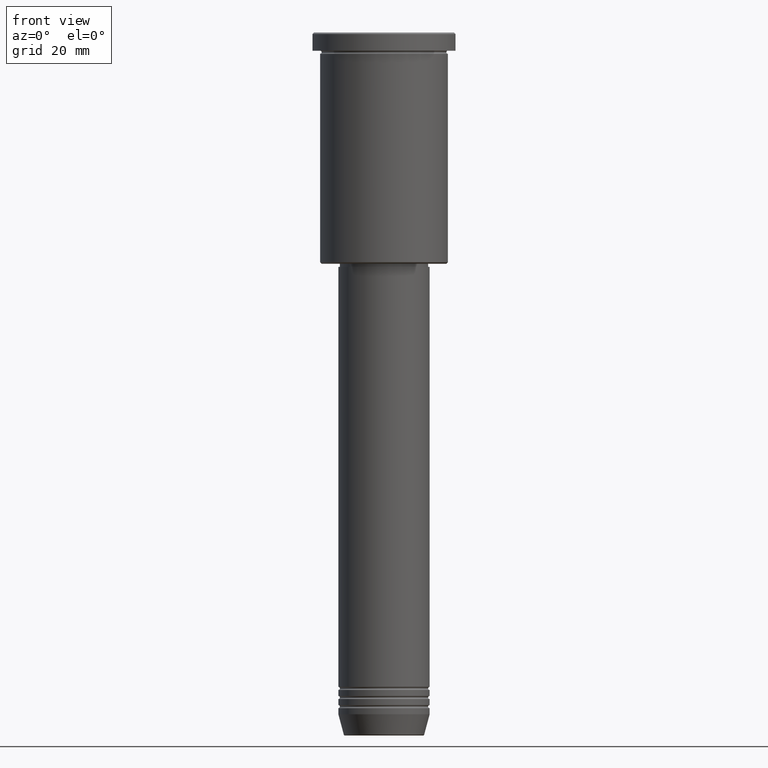
[diagram: clean part render]
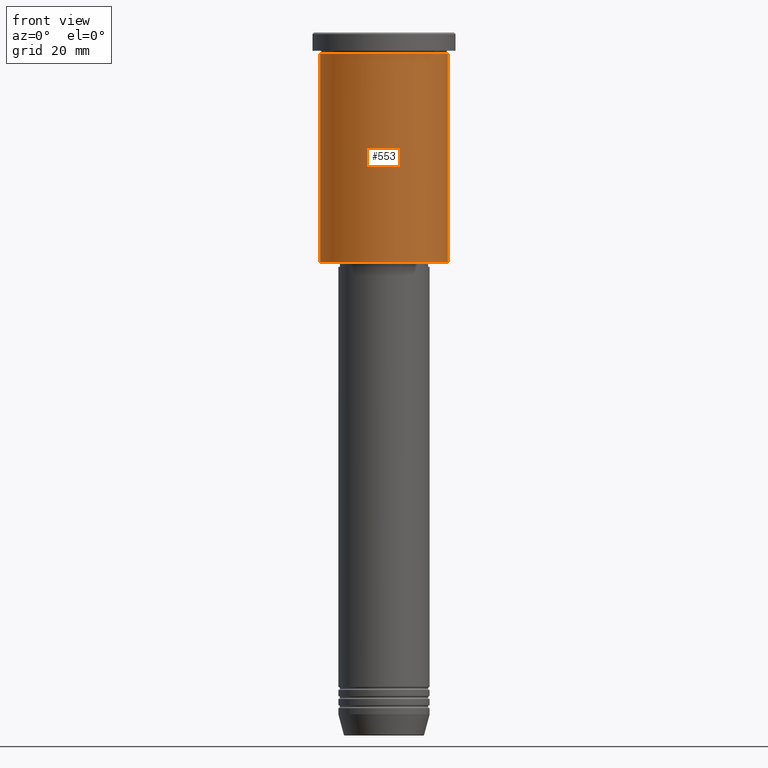
[diagram: same view with one face highlighted and labeled with its STEP entity id]
A machine part, front view. The second image highlights one B-rep face of the part: STEP entity #553.
In plain terms, the highlighted cylindrical surface (partial cylindrical patch) has radius 21 mm, axis along (-0, -0, 1).
Its self-contained STEP definition (entity closure, byte-faithful):
#3 = VECTOR ( 'NONE', #804, 1000.000000000000000 ) ;
#31 = CARTESIAN_POINT ( 'NONE',  ( 0.000000000000000000, 0.000000000000000000, 0.000000000000000000 ) ) ;
#35 = CARTESIAN_POINT ( 'NONE',  ( 21.00000000000000000, 0.000000000000000000, -75.50000000000001421 ) ) ;
#70 = AXIS2_PLACEMENT_3D ( 'NONE', #946, #139, #153 ) ;
#100 = EDGE_CURVE ( 'NONE', #912, #1050, #873, .T. ) ;
#116 = FACE_OUTER_BOUND ( 'NONE', #418, .T. ) ;
#123 = CIRCLE ( 'NONE', #1052, 21.00000000000000000 ) ;
#131 = ORIENTED_EDGE ( 'NONE', *, *, #286, .F. ) ;
#139 = DIRECTION ( 'NONE',  ( -0.000000000000000000, -0.000000000000000000, 1.000000000000000000 ) ) ;
#144 = CARTESIAN_POINT ( 'NONE',  ( 0.000000000000000000, 0.000000000000000000, -75.50000000000001421 ) ) ;
#153 = DIRECTION ( 'NONE',  ( 1.000000000000000000, 0.000000000000000000, 0.000000000000000000 ) ) ;
#197 = CARTESIAN_POINT ( 'NONE',  ( 21.00000000000000000, 0.000000000000000000, 0.000000000000000000 ) ) ;
#210 = DIRECTION ( 'NONE',  ( -0.000000000000000000, -0.000000000000000000, 1.000000000000000000 ) ) ;
#230 = ORIENTED_EDGE ( 'NONE', *, *, #1068, .T. ) ;
#286 = EDGE_CURVE ( 'NONE', #1050, #312, #408, .T. ) ;
#312 = VERTEX_POINT ( 'NONE', #336 ) ;
#336 = CARTESIAN_POINT ( 'NONE',  ( 21.00000000000000000, 0.000000000000000000, -6.999999999999994671 ) ) ;
#408 = CIRCLE ( 'NONE', #70, 21.00000000000000000 ) ;
#418 = EDGE_LOOP ( 'NONE', ( #701, #230, #1065, #131 ) ) ;
#477 = CYLINDRICAL_SURFACE ( 'NONE', #771, 21.00000000000000000 ) ;
#490 = DIRECTION ( 'NONE',  ( -1.000000000000000000, 0.000000000000000000, 0.000000000000000000 ) ) ;
#553 = ADVANCED_FACE ( 'NONE', ( #116 ), #477, .T. ) ;
#573 = DIRECTION ( 'NONE',  ( 1.000000000000000000, 0.000000000000000000, 0.000000000000000000 ) ) ;
#625 = CARTESIAN_POINT ( 'NONE',  ( -21.00000000000000000, 2.571758278209441661E-15, 0.000000000000000000 ) ) ;
#701 = ORIENTED_EDGE ( 'NONE', *, *, #100, .F. ) ;
#718 = LINE ( 'NONE', #197, #3 ) ;
#771 = AXIS2_PLACEMENT_3D ( 'NONE', #31, #210, #573 ) ;
#804 = DIRECTION ( 'NONE',  ( -0.000000000000000000, -0.000000000000000000, 1.000000000000000000 ) ) ;
#807 = EDGE_CURVE ( 'NONE', #1095, #312, #718, .T. ) ;
#849 = DIRECTION ( 'NONE',  ( -0.000000000000000000, -0.000000000000000000, 1.000000000000000000 ) ) ;
#855 = VECTOR ( 'NONE', #993, 1000.000000000000000 ) ;
#873 = LINE ( 'NONE', #625, #855 ) ;
#912 = VERTEX_POINT ( 'NONE', #925 ) ;
#925 = CARTESIAN_POINT ( 'NONE',  ( -21.00000000000000000, 2.571758278209441661E-15, -75.50000000000001421 ) ) ;
#935 = CARTESIAN_POINT ( 'NONE',  ( -21.00000000000000000, 2.571758278209441661E-15, -6.999999999999994671 ) ) ;
#946 = CARTESIAN_POINT ( 'NONE',  ( 0.000000000000000000, 0.000000000000000000, -6.999999999999994671 ) ) ;
#993 = DIRECTION ( 'NONE',  ( -0.000000000000000000, -0.000000000000000000, 1.000000000000000000 ) ) ;
#1050 = VERTEX_POINT ( 'NONE', #935 ) ;
#1052 = AXIS2_PLACEMENT_3D ( 'NONE', #144, #849, #490 ) ;
#1065 = ORIENTED_EDGE ( 'NONE', *, *, #807, .T. ) ;
#1068 = EDGE_CURVE ( 'NONE', #912, #1095, #123, .T. ) ;
#1095 = VERTEX_POINT ( 'NONE', #35 ) ;